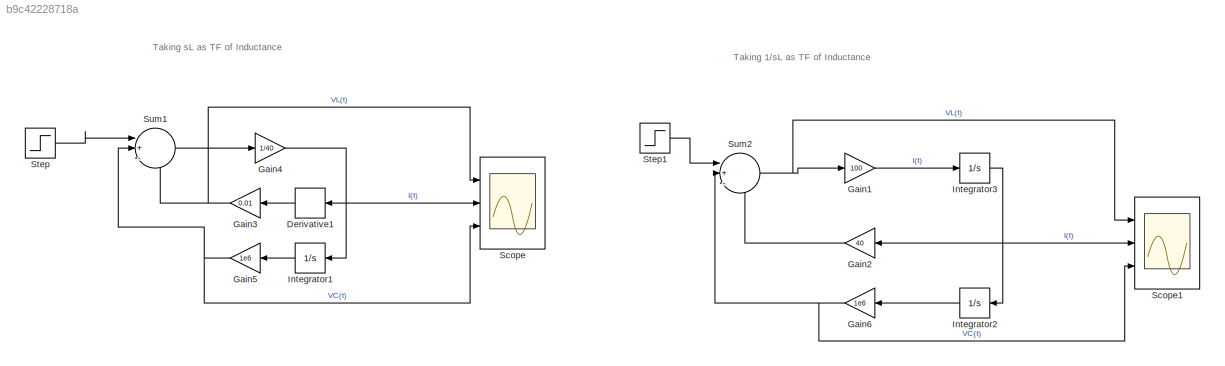
MODEL slx_b9c42228718a
KIND model
CONFIG AbsTol = auto
CONFIG EnableMultiTasking = off
CONFIG FixedStep = auto
CONFIG MaxStep = auto
CONFIG MinStep = auto
CONFIG RelTol = 1e-9
CONFIG SampleTimeConstraint = Unconstrained
CONFIG SolverName = VariableStepAuto
CONFIG StartTime = 0.0
CONFIG StopTime = 0.004
BLOCK [Derivative] Derivative1
BLOCK [Gain] Gain1
  Gain = 100
BLOCK [Gain] Gain2
  Gain = 40
BLOCK [Gain] Gain3
  Gain = 0.01
BLOCK [Gain] Gain4
  Gain = 1/40
BLOCK [Gain] Gain5
  Gain = 1e6
BLOCK [Gain] Gain6
  Gain = 1e6
BLOCK [Integrator] Integrator1
  Ports = [1, 1]
BLOCK [Integrator] Integrator2
  Ports = [1, 1]
BLOCK [Integrator] Integrator3
  Ports = [1, 1]
BLOCK [Scope] Scope
  Floating = off
  NumInputPorts = 3
  Ports = [3]
  ScopeSpecificationString = Simulink.scopes.TimeScopeBlockCfg('CurrentConfiguration', extmgr.ConfigurationSet(extmgr.Configuration('Core','General UI',true,'FigureColor',[0 0 0],'DisplayFullSourceName',true),extmgr.Configuration('Core','Source UI',true),extmgr.Configuration('Sources','WiredSimulink',true),extmgr.Configuration('Visuals','Time Domain',true,'SerializedDisplays',{struct('MinYLimReal','-2.44072','MaxYLimReal','3....<+1804ch>
BLOCK [Scope] Scope1
  Floating = off
  NumInputPorts = 3
  Ports = [3]
  ScopeSpecificationString = Simulink.scopes.TimeScopeBlockCfg('CurrentConfiguration', extmgr.ConfigurationSet(extmgr.Configuration('Core','General UI',true,'FigureColor',[0 0 0],'DisplayFullSourceName',true),extmgr.Configuration('Core','Source UI',true),extmgr.Configuration('Sources','WiredSimulink',true,'DataLoggingVariableName','ScopeData1'),extmgr.Configuration('Visuals','Time Domain',true,'SerializedDisplays',{struct('Mi...<+1843ch>
BLOCK [Step] Step
  SampleTime = 0
  Time = 0
  ZeroCross = off
BLOCK [Step] Step1
  SampleTime = 0
  Time = 0
  ZeroCross = off
BLOCK [Sum] Sum1
  Inputs = |+--
  Ports = [3, 1]
BLOCK [Sum] Sum2
  Inputs = |+--
  Ports = [3, 1]
ANNOTATION (root): Taking 1/sL as TF of Inductance
ANNOTATION (root): Taking sL as TF of Inductance
LINE Derivative1:1 -> Gain3:1
LINE Gain1:1 -> Integrator3:1
LINE Gain2:1 -> Sum2:3
NET Gain3:1 -> Scope:1, Sum1:3
NET Gain4:1 -> Derivative1:1, Integrator1:1, Scope:2
NET Gain5:1 -> Scope:3, Sum1:2
NET Gain6:1 -> Scope1:3, Sum2:2
LINE Integrator1:1 -> Gain5:1
LINE Integrator2:1 -> Gain6:1
NET Integrator3:1 -> Gain2:1, Integrator2:1, Scope1:2
LINE Step1:1 -> Sum2:1
LINE Step:1 -> Sum1:1
LINE Sum1:1 -> Gain4:1
NET Sum2:1 -> Gain1:1, Scope1:1
note: NET lines group one-source signal fan-out (src -> all destinations, sorted); 1:1 wires keep LINE
